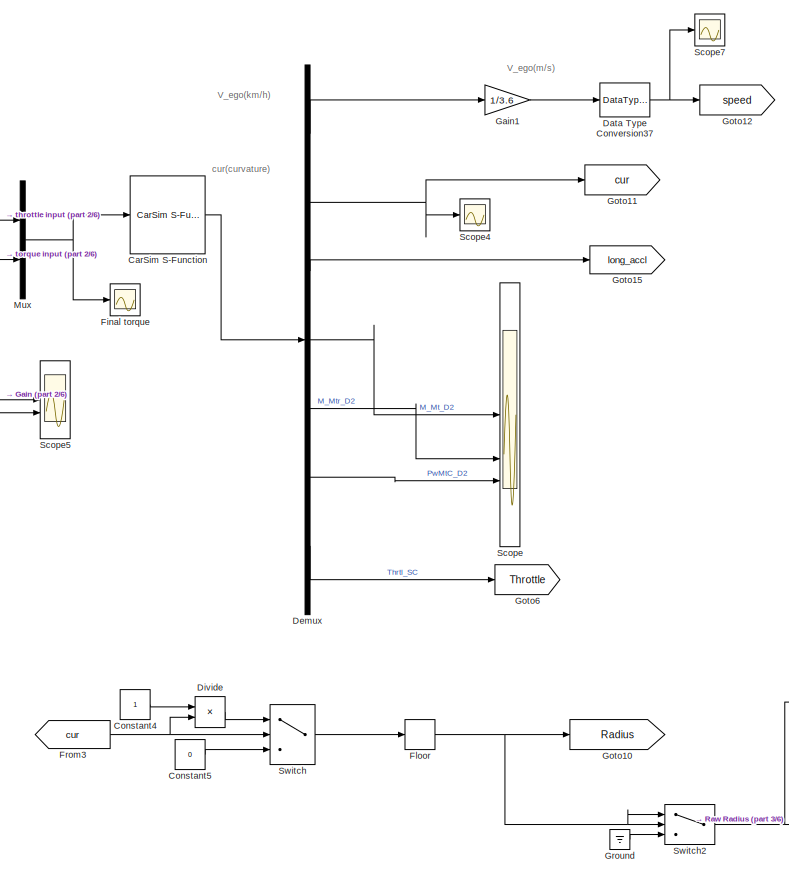
[diagram: root canvas - part 1/6, top center region]
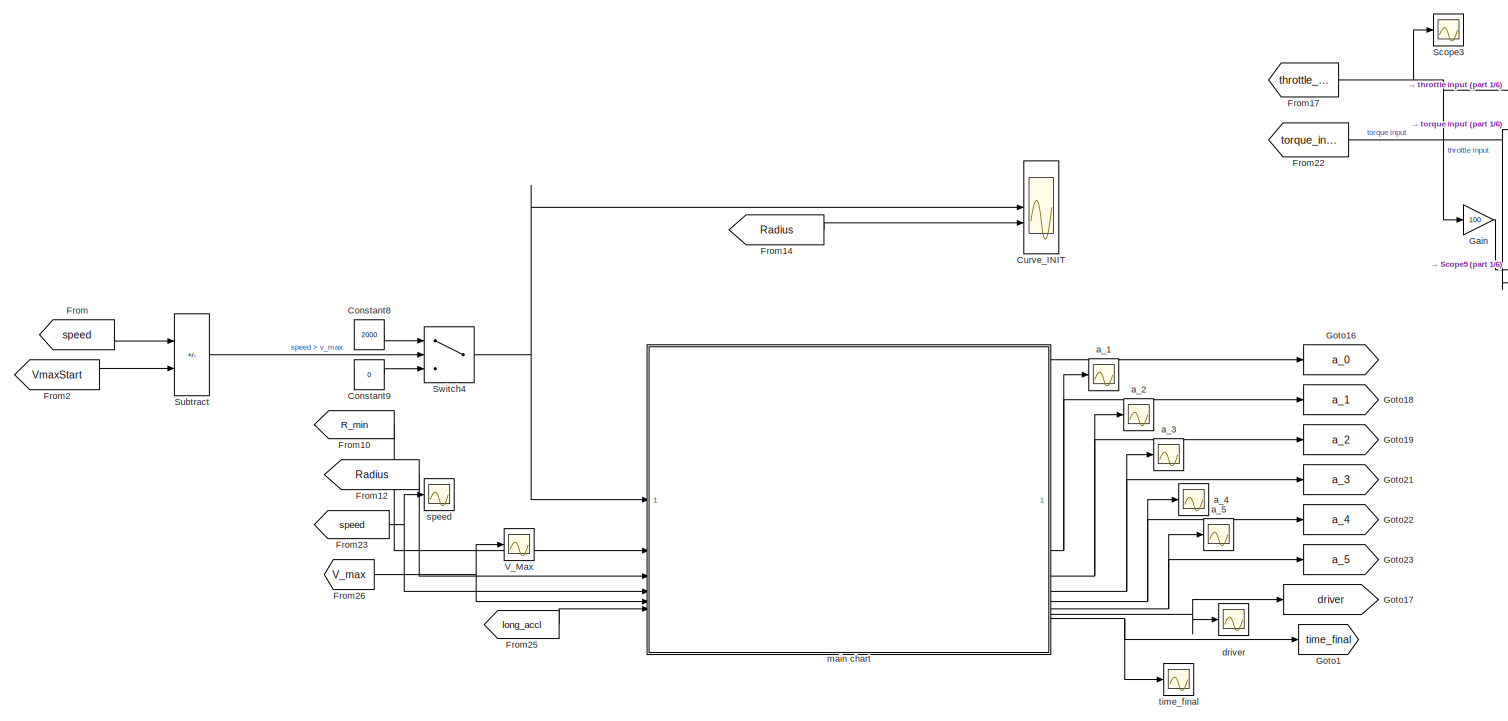
[diagram: root canvas - part 2/6, top left region]
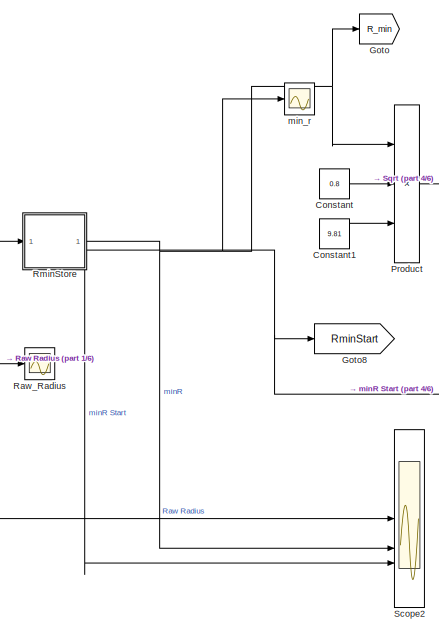
[diagram: root canvas - part 3/6, middle right region]
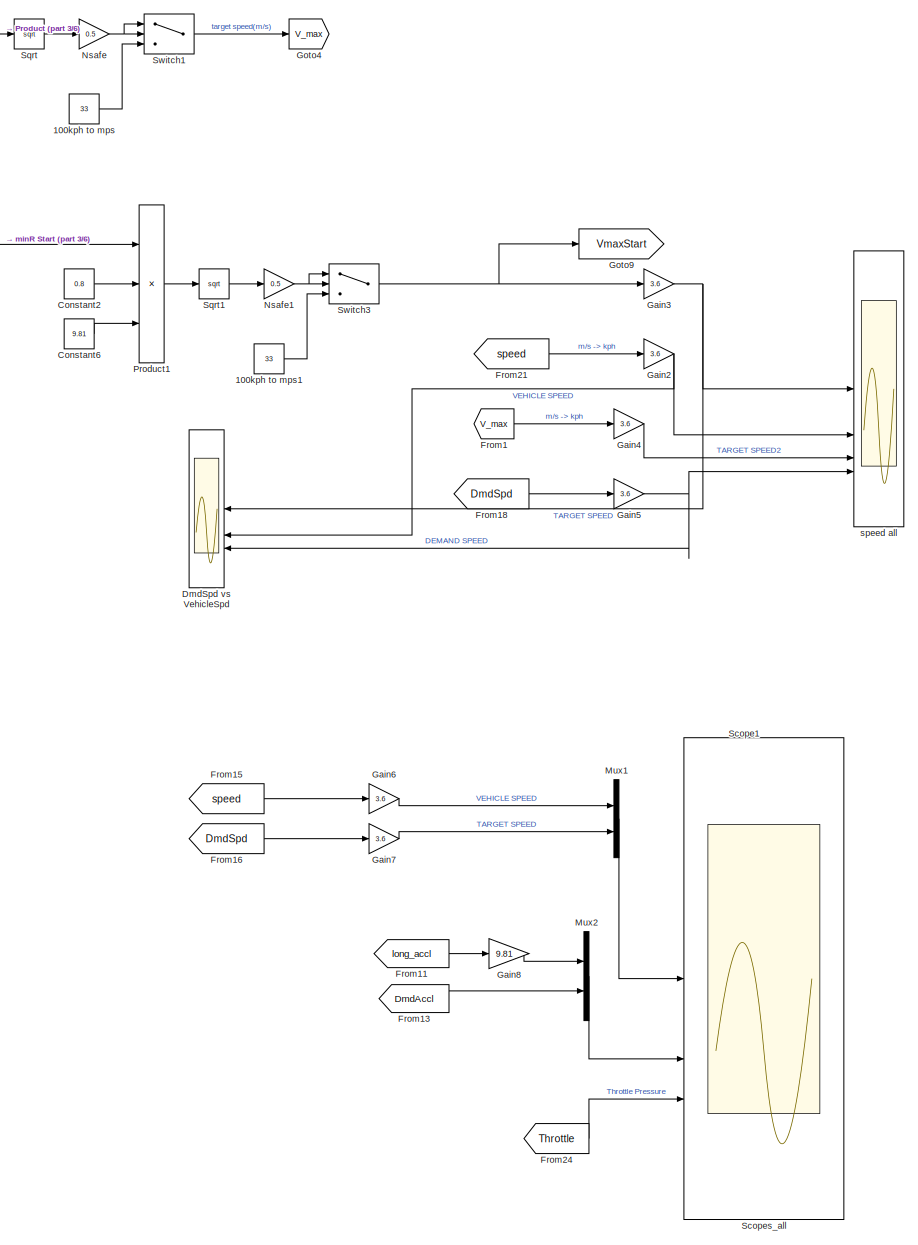
[diagram: root canvas - part 4/6, middle right region]
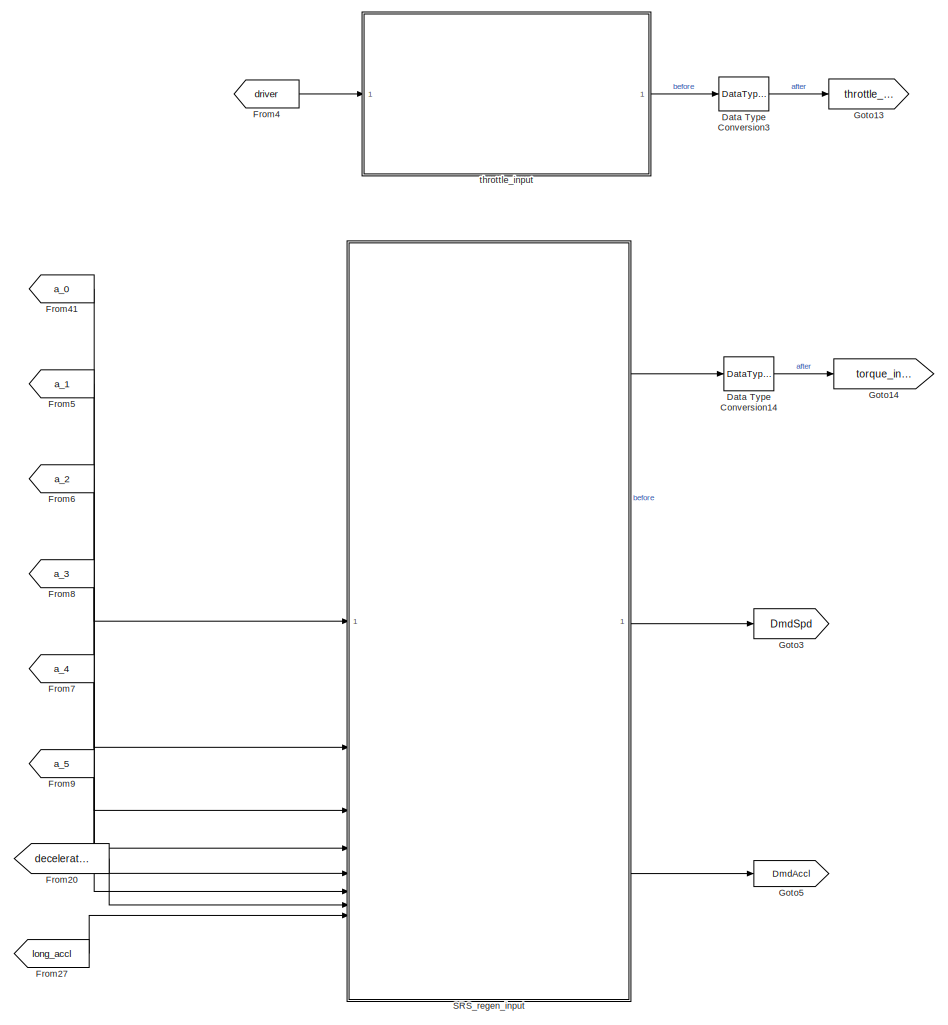
[diagram: root canvas - part 5/6, bottom left region]
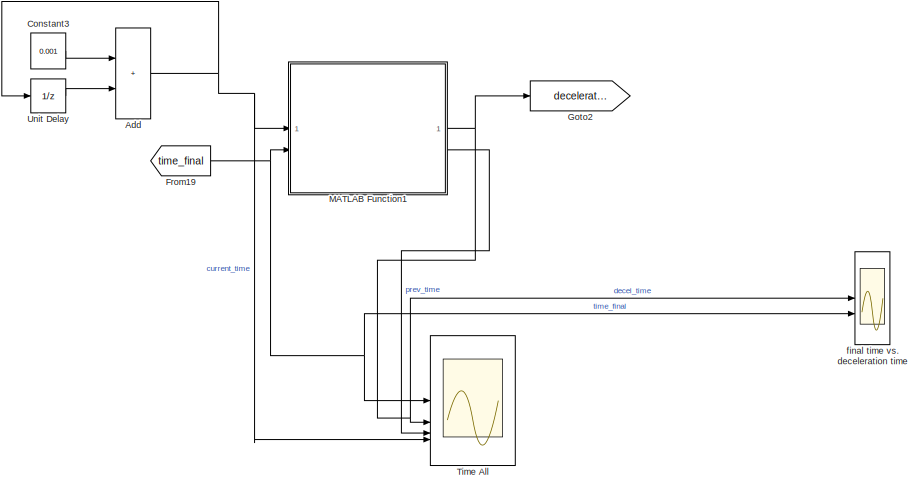
[diagram: root canvas - part 6/6, bottom center region]
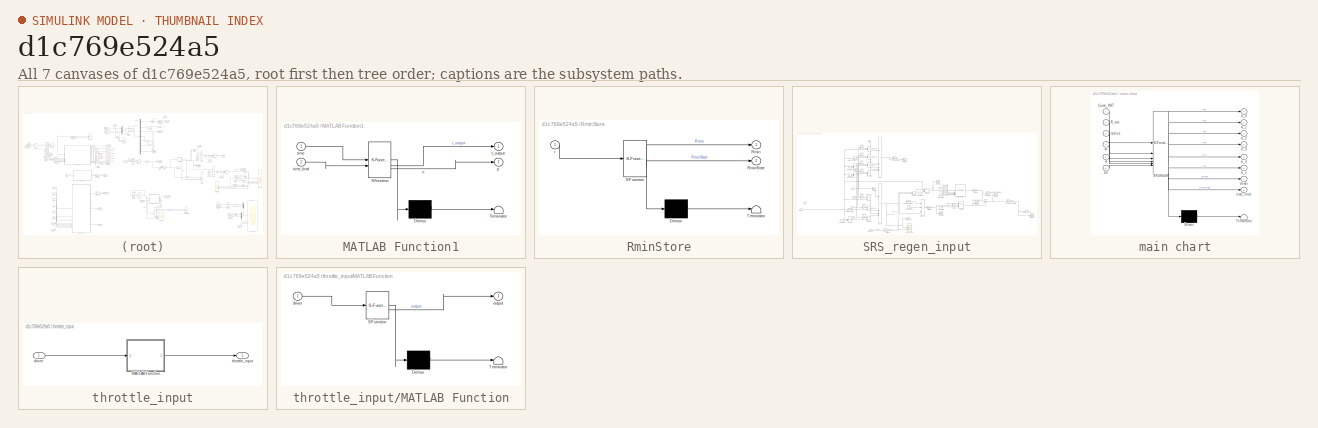
[diagram: thumbnail index - all 7 canvases of the model, root first then tree order]
MODEL slx_d1c769e524a5
KIND model
CONFIG AbsTol = auto
CONFIG EnableMultiTasking = off
CONFIG FixedStep = 0.001
CONFIG MaxStep = 0.001
CONFIG MinStep = auto
CONFIG RelTol = 1e-3
CONFIG SampleTimeConstraint = Unconstrained
CONFIG SolverName = FixedStepAuto
CONFIG StartTime = 0.0
CONFIG StopTime = 50
BLOCK [Constant] 100kph to mps
  Value = 33
BLOCK [Constant] 100kph to mps1
  Value = 33
BLOCK [Sum] Add
  IconShape = rectangular
BLOCK [Reference] CarSim S-Function  REF=Solver_SF/CarSim S-Function
  Priority = 1
  SourceBlock = Solver_SF/CarSim S-Function
  SourceProductName = CarSim S-Function
  SourceType = Vehicle math model library
BLOCK [Constant] Constant
  Value = 0.8
BLOCK [Constant] Constant1
  Value = 9.81
BLOCK [Constant] Constant2
  Value = 0.8
BLOCK [Constant] Constant3
  Value = 0.001
BLOCK [Constant] Constant4
BLOCK [Constant] Constant5
  Value = 0
BLOCK [Constant] Constant6
  Value = 9.81
BLOCK [Constant] Constant8
  Value = 2000
BLOCK [Constant] Constant9
  Value = 0
BLOCK [Scope] Curve_INIT
  Floating = off
  NumInputPorts = 2
  ScopeSpecificationString = Simulink.scopes.TimeScopeBlockCfg('CurrentConfiguration', extmgr.ConfigurationSet(extmgr.Configuration('Core','General UI',true),extmgr.Configuration('Core','Source UI',true),extmgr.Configuration('Sources','WiredSimulink',true,'DataLoggingVariableName','ScopeData1'),extmgr.Configuration('Visuals','Time Domain',true,'SerializedDisplays',{struct('MinYLimReal','-340.00000','MaxYLimReal','3060.00000',...<+1463ch>
BLOCK [DataTypeConversion] Data Type Conversion14
  OutDataTypeStr = fixdt(1,16,0)
  RndMeth = Nearest
  SaturateOnIntegerOverflow = off
BLOCK [DataTypeConversion] Data Type Conversion3
  OutDataTypeStr = fixdt(1,16,0)
  RndMeth = Nearest
  SaturateOnIntegerOverflow = off
BLOCK [DataTypeConversion] Data Type Conversion37
  OutDataTypeStr = fixdt(1,16,0.01,2^-6)
  RndMeth = Simplest
  SaturateOnIntegerOverflow = off
BLOCK [Demux] Demux
  Outputs = 7
BLOCK [Product] Divide
  Inputs = */
BLOCK [Scope] DmdSpd vs VehicleSpd
  Floating = off
  NumInputPorts = 3
  ScopeSpecificationString = Simulink.scopes.TimeScopeBlockCfg('CurrentConfiguration', extmgr.ConfigurationSet(extmgr.Configuration('Core','General UI',true),extmgr.Configuration('Core','Source UI',true),extmgr.Configuration('Sources','WiredSimulink',true,'DataLoggingVariableName','ScopeData1'),extmgr.Configuration('Visuals','Time Domain',true,'SerializedDisplays',{struct('MinYLimReal','-14.85265','MaxYLimReal','133.67382','Y...<+1462ch>
BLOCK [Scope] Final torque
  Floating = off
  NumInputPorts = 1
  ScopeSpecificationString = Simulink.scopes.TimeScopeBlockCfg('CurrentConfiguration', extmgr.ConfigurationSet(extmgr.Configuration('Core','General UI',true),extmgr.Configuration('Core','Source UI',true),extmgr.Configuration('Sources','WiredSimulink',true,'DataLoggingVariableName','ScopeData2'),extmgr.Configuration('Visuals','Time Domain',true,'SerializedDisplays',{struct('MinYLimReal','-165.6464','MaxYLimReal','80.74438','YL...<+1465ch>
BLOCK [Rounding] Floor
BLOCK [From] From
  GotoTag = speed
BLOCK [From] From1
  GotoTag = V_max
BLOCK [From] From10
  GotoTag = R_min
BLOCK [From] From11
  GotoTag = long_accl
BLOCK [From] From12
  GotoTag = Radius
BLOCK [From] From13
  GotoTag = DmdAccl
BLOCK [From] From14
  GotoTag = Radius
BLOCK [From] From15
  GotoTag = speed
BLOCK [From] From16
  GotoTag = DmdSpd
BLOCK [From] From17
  GotoTag = throttle_input
BLOCK [From] From18
  GotoTag = DmdSpd
BLOCK [From] From19
  GotoTag = time_final
BLOCK [From] From2
  GotoTag = VmaxStart
BLOCK [From] From20
  GotoTag = deceleration_time
BLOCK [From] From21
  GotoTag = speed
BLOCK [From] From22
  GotoTag = torque_input
BLOCK [From] From23
  GotoTag = speed
BLOCK [From] From24
  GotoTag = Throttle
BLOCK [From] From25
  GotoTag = long_accl
BLOCK [From] From26
  GotoTag = V_max
BLOCK [From] From27
  GotoTag = long_accl
BLOCK [From] From3
  GotoTag = cur
BLOCK [From] From4
  GotoTag = driver
BLOCK [From] From41
  GotoTag = a_0
BLOCK [From] From5
  GotoTag = a_1
BLOCK [From] From6
  GotoTag = a_2
BLOCK [From] From7
  GotoTag = a_4
BLOCK [From] From8
  GotoTag = a_3
BLOCK [From] From9
  GotoTag = a_5
BLOCK [Gain] Gain
  Gain = 100
BLOCK [Gain] Gain1
  Gain = 1/3.6
BLOCK [Gain] Gain2
  Gain = 3.6
BLOCK [Gain] Gain3
  Gain = 3.6
BLOCK [Gain] Gain4
  Gain = 3.6
BLOCK [Gain] Gain5
  Gain = 3.6
BLOCK [Gain] Gain6
  Gain = 3.6
BLOCK [Gain] Gain7
  Gain = 3.6
BLOCK [Gain] Gain8
  Gain = 9.81
BLOCK [Goto] Goto
  GotoTag = R_min
BLOCK [Goto] Goto1
  GotoTag = time_final
BLOCK [Goto] Goto10
  GotoTag = Radius
BLOCK [Goto] Goto11
  GotoTag = cur
BLOCK [Goto] Goto12
  GotoTag = speed
BLOCK [Goto] Goto13
  GotoTag = throttle_input
BLOCK [Goto] Goto14
  GotoTag = torque_input
BLOCK [Goto] Goto15
  GotoTag = long_accl
BLOCK [Goto] Goto16
  GotoTag = a_0
BLOCK [Goto] Goto17
  GotoTag = driver
BLOCK [Goto] Goto18
  GotoTag = a_1
BLOCK [Goto] Goto19
  GotoTag = a_2
BLOCK [Goto] Goto2
  GotoTag = deceleration_time
BLOCK [Goto] Goto21
  GotoTag = a_3
BLOCK [Goto] Goto22
  GotoTag = a_4
BLOCK [Goto] Goto23
  GotoTag = a_5
BLOCK [Goto] Goto3
  GotoTag = DmdSpd
BLOCK [Goto] Goto4
  GotoTag = V_max
BLOCK [Goto] Goto5
  GotoTag = DmdAccl
BLOCK [Goto] Goto6
  GotoTag = Throttle
BLOCK [Goto] Goto8
  GotoTag = RminStart
BLOCK [Goto] Goto9
  GotoTag = VmaxStart
BLOCK [Ground] Ground
BLOCK [SubSystem] MATLAB Function1
  ErrorFcn = Stateflow.Translate.translate
  PermitHierarchicalResolution = ExplicitOnly
  SFBlockType = MATLAB Function
  TreatAsAtomicUnit = on
BLOCK [Demux] MATLAB Function1/ Demux 
  Outputs = 1
BLOCK [S-Function] MATLAB Function1/ SFunction 
  EnableBusSupport = on
  FunctionName = sf_sfun
  PortCounts = [2 3]
  SFcnIsStateOwnerBlock = off
  SFunctionDeploymentMode = off
  Tag = Stateflow S-Function 3
BLOCK [Terminator] MATLAB Function1/ Terminator 
BLOCK [Outport] MATLAB Function1/p
  Port = 2
BLOCK [Outport] MATLAB Function1/t_output
BLOCK [Inport] MATLAB Function1/time
BLOCK [Inport] MATLAB Function1/time_final
  Port = 2
BLOCK [Mux] Mux
  DisplayOption = bar
  Inputs = 2
BLOCK [Mux] Mux1
  DisplayOption = bar
  Inputs = 2
BLOCK [Mux] Mux2
  DisplayOption = bar
  Inputs = 2
BLOCK [Gain] Nsafe
  Gain = 0.5
BLOCK [Gain] Nsafe1
  Gain = 0.5
BLOCK [Product] Product
  Inputs = 3
BLOCK [Product] Product1
  Inputs = 3
BLOCK [Scope] Raw_Radius
  Floating = off
  NumInputPorts = 1
  ScopeSpecificationString = Simulink.scopes.TimeScopeBlockCfg('CurrentConfiguration', extmgr.ConfigurationSet(extmgr.Configuration('Core','General UI',true),extmgr.Configuration('Core','Source UI',true),extmgr.Configuration('Sources','WiredSimulink',true,'DataLoggingVariableName','ScopeData2'),extmgr.Configuration('Visuals','Time Domain',true,'SerializedDisplays',{struct('MinYLimReal','-340.00000','MaxYLimReal','3060.00000',...<+1458ch>
BLOCK [SubSystem] RminStore
  ErrorFcn = Stateflow.Translate.translate
  PermitHierarchicalResolution = ExplicitOnly
  SFBlockType = Chart
  TreatAsAtomicUnit = on
BLOCK [Demux] RminStore/ Demux 
  Outputs = 1
BLOCK [S-Function] RminStore/ SFunction 
  EnableBusSupport = on
  FunctionName = sf_sfun
  PortCounts = [1 3]
  SFcnIsStateOwnerBlock = off
  SFunctionDeploymentMode = off
  Tag = Stateflow S-Function 5
BLOCK [Terminator] RminStore/ Terminator 
BLOCK [Outport] RminStore/Rmin
BLOCK [Outport] RminStore/RminStart
  Port = 2
BLOCK [Inport] RminStore/r
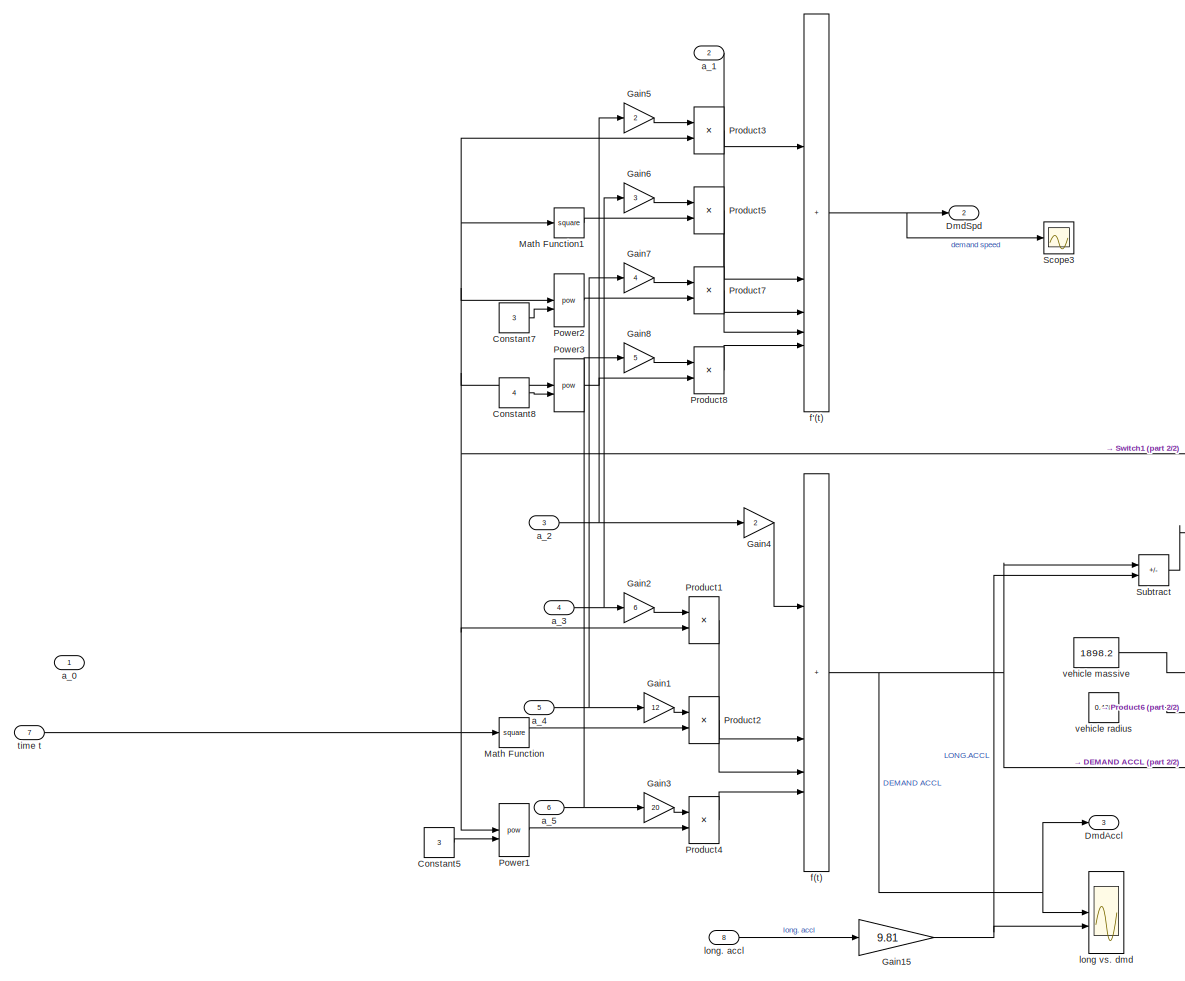
[diagram: SRS_regen_input - part 1/2, left side, full height]
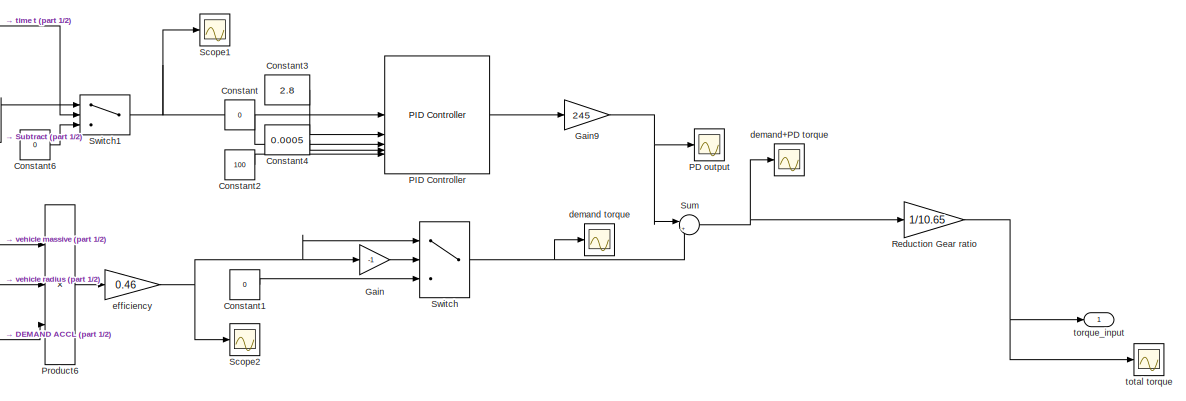
[diagram: SRS_regen_input - part 2/2, middle right region]
BLOCK [SubSystem] SRS_regen_input
  TreatAsAtomicUnit = on
BLOCK [Constant] SRS_regen_input/Constant
  Value = 0
BLOCK [Constant] SRS_regen_input/Constant1
  Value = 0
BLOCK [Constant] SRS_regen_input/Constant2
  Value = 100
BLOCK [Constant] SRS_regen_input/Constant3
  Value = 2.8
BLOCK [Constant] SRS_regen_input/Constant4
  Value = 0.0005
BLOCK [Constant] SRS_regen_input/Constant5
  Value = 3
BLOCK [Constant] SRS_regen_input/Constant6
  Value = 0
BLOCK [Constant] SRS_regen_input/Constant7
  Value = 3
BLOCK [Constant] SRS_regen_input/Constant8
  Value = 4
BLOCK [Outport] SRS_regen_input/DmdAccl
  Port = 3
BLOCK [Outport] SRS_regen_input/DmdSpd
  Port = 2
BLOCK [Gain] SRS_regen_input/Gain
  Gain = -1
BLOCK [Gain] SRS_regen_input/Gain1
  Gain = 12
BLOCK [Gain] SRS_regen_input/Gain15
  Gain = 9.81
BLOCK [Gain] SRS_regen_input/Gain2
  Gain = 6
BLOCK [Gain] SRS_regen_input/Gain3
  Gain = 20
BLOCK [Gain] SRS_regen_input/Gain4
  Gain = 2
BLOCK [Gain] SRS_regen_input/Gain5
  Gain = 2
BLOCK [Gain] SRS_regen_input/Gain6
  Gain = 3
BLOCK [Gain] SRS_regen_input/Gain7
  Gain = 4
BLOCK [Gain] SRS_regen_input/Gain8
  Gain = 5
BLOCK [Gain] SRS_regen_input/Gain9
  Gain = 245
BLOCK [Math] SRS_regen_input/Math Function
  Operator = square
BLOCK [Math] SRS_regen_input/Math Function1
  Operator = square
BLOCK [Scope] SRS_regen_input/PD output
  Floating = off
  NumInputPorts = 1
  ScopeSpecificationString = Simulink.scopes.TimeScopeBlockCfg('CurrentConfiguration', extmgr.ConfigurationSet(extmgr.Configuration('Core','General UI',true),extmgr.Configuration('Core','Source UI',true),extmgr.Configuration('Sources','WiredSimulink',true,'DataLoggingVariableName','ScopeData1'),extmgr.Configuration('Visuals','Time Domain',true,'SerializedDisplays',{struct('MinYLimReal','-1095.07692','MaxYLimReal','511.7642','...<+1457ch>
BLOCK [Reference] SRS_regen_input/PID Controller  REF=slpidlib/PID Controller
  LibrarySourceBlock = simulink/Continuous/PID Controller
  SourceBlock = slpidlib/PID Controller
  SourceType = PID 1dof
BLOCK [Math] SRS_regen_input/Power1
  Operator = pow
BLOCK [Math] SRS_regen_input/Power2
  Operator = pow
BLOCK [Math] SRS_regen_input/Power3
  Operator = pow
BLOCK [Product] SRS_regen_input/Product1
BLOCK [Product] SRS_regen_input/Product2
BLOCK [Product] SRS_regen_input/Product3
BLOCK [Product] SRS_regen_input/Product4
BLOCK [Product] SRS_regen_input/Product5
BLOCK [Product] SRS_regen_input/Product6
  Inputs = 3
BLOCK [Product] SRS_regen_input/Product7
BLOCK [Product] SRS_regen_input/Product8
BLOCK [Gain] SRS_regen_input/Reduction Gear ratio
  Gain = 1/10.65
BLOCK [Scope] SRS_regen_input/Scope1
  Floating = off
  NumInputPorts = 1
  ScopeSpecificationString = Simulink.scopes.TimeScopeBlockCfg('CurrentConfiguration', extmgr.ConfigurationSet(extmgr.Configuration('Core','General UI',true),extmgr.Configuration('Core','Source UI',true),extmgr.Configuration('Sources','WiredSimulink',true,'DataLoggingVariableName','ScopeData1'),extmgr.Configuration('Visuals','Time Domain',true,'SerializedDisplays',{struct('MinYLimReal','-1.18286','MaxYLimReal','0.42088','YLab...<+1422ch>
BLOCK [Scope] SRS_regen_input/Scope2
  Floating = off
  NumInputPorts = 1
  ScopeSpecificationString = Simulink.scopes.TimeScopeBlockCfg('CurrentConfiguration', extmgr.ConfigurationSet(extmgr.Configuration('Core','General UI',true),extmgr.Configuration('Core','Source UI',true),extmgr.Configuration('Sources','WiredSimulink',true,'DataLoggingVariableName','ScopeData1'),extmgr.Configuration('Visuals','Time Domain',true,'SerializedDisplays',{struct('MinYLimReal','-922.0159','MaxYLimReal','163.75974','Y...<+1454ch>
BLOCK [Scope] SRS_regen_input/Scope3
  Floating = off
  NumInputPorts = 1
  ScopeSpecificationString = Simulink.scopes.TimeScopeBlockCfg('CurrentConfiguration', extmgr.ConfigurationSet(extmgr.Configuration('Core','General UI',true),extmgr.Configuration('Core','Source UI',true),extmgr.Configuration('Sources','WiredSimulink',true,'DataLoggingVariableName','ScopeData1'),extmgr.Configuration('Visuals','Time Domain',true,'SerializedDisplays',{struct('MinYLimReal','-3.13608','MaxYLimReal','28.22474','YLa...<+1446ch>
BLOCK [Sum] SRS_regen_input/Subtract
  IconShape = rectangular
  Inputs = +-
BLOCK [Sum] SRS_regen_input/Sum
  Inputs = |++
BLOCK [Switch] SRS_regen_input/Switch
  Criteria = u2 > Threshold
  InputSameDT = off
  SaturateOnIntegerOverflow = off
BLOCK [Switch] SRS_regen_input/Switch1
  Criteria = u2 ~= 0
  InputSameDT = off
  SaturateOnIntegerOverflow = off
BLOCK [Inport] SRS_regen_input/a_0
BLOCK [Inport] SRS_regen_input/a_1
  Port = 2
BLOCK [Inport] SRS_regen_input/a_2
  Port = 3
BLOCK [Inport] SRS_regen_input/a_3
  Port = 4
BLOCK [Inport] SRS_regen_input/a_4
  Port = 5
BLOCK [Inport] SRS_regen_input/a_5
  Port = 6
BLOCK [Scope] SRS_regen_input/demand torque
  Floating = off
  NumInputPorts = 1
  ScopeSpecificationString = Simulink.scopes.TimeScopeBlockCfg('CurrentConfiguration', extmgr.ConfigurationSet(extmgr.Configuration('Core','General UI',true),extmgr.Configuration('Core','Source UI',true),extmgr.Configuration('Sources','WiredSimulink',true,'DataLoggingVariableName','ScopeData2'),extmgr.Configuration('Visuals','Time Domain',true,'SerializedDisplays',{struct('MinYLimReal','-477.7245','MaxYLimReal','53.0805','YLa...<+1471ch>
BLOCK [Scope] SRS_regen_input/demand+PD torque
  Floating = off
  NumInputPorts = 1
  ScopeSpecificationString = Simulink.scopes.TimeScopeBlockCfg('CurrentConfiguration', extmgr.ConfigurationSet(extmgr.Configuration('Core','General UI',true),extmgr.Configuration('Core','Source UI',true),extmgr.Configuration('Sources','WiredSimulink',true,'DataLoggingVariableName','ScopeData1'),extmgr.Configuration('Visuals','Time Domain',true,'SerializedDisplays',{struct('MinYLimReal','-651.14864','MaxYLimReal','137.09682','...<+1470ch>
BLOCK [Gain] SRS_regen_input/efficiency
  Gain = 0.46
BLOCK [Sum] SRS_regen_input/f'(t)
  IconShape = rectangular
  Inputs = 5
BLOCK [Sum] SRS_regen_input/f(t)
  IconShape = rectangular
  Inputs = 4
BLOCK [Scope] SRS_regen_input/long vs. dmd
  Floating = off
  NumInputPorts = 2
  ScopeSpecificationString = Simulink.scopes.TimeScopeBlockCfg('CurrentConfiguration', extmgr.ConfigurationSet(extmgr.Configuration('Core','General UI',true),extmgr.Configuration('Core','Source UI',true),extmgr.Configuration('Sources','WiredSimulink',true,'DataLoggingVariableName','ScopeData1'),extmgr.Configuration('Visuals','Time Domain',true,'SerializedDisplays',{struct('MinYLimReal','-4.12133','MaxYLimReal','4.22361','YLab...<+1499ch>
BLOCK [Inport] SRS_regen_input/long. accl
  Port = 8
BLOCK [Inport] SRS_regen_input/time t
  Port = 7
BLOCK [Outport] SRS_regen_input/torque_input
BLOCK [Scope] SRS_regen_input/total torque
  Floating = off
  NumInputPorts = 1
  ScopeSpecificationString = Simulink.scopes.TimeScopeBlockCfg('CurrentConfiguration', extmgr.ConfigurationSet(extmgr.Configuration('Core','General UI',true),extmgr.Configuration('Core','Source UI',true),extmgr.Configuration('Sources','WiredSimulink',true,'DataLoggingVariableName','ScopeData2'),extmgr.Configuration('Visuals','Time Domain',true,'SerializedDisplays',{struct('MinYLimReal','-20.08932','MaxYLimReal','3.34664','YLa...<+1571ch>
BLOCK [Constant] SRS_regen_input/vehicle massive
  Value = 1898.2
BLOCK [Constant] SRS_regen_input/vehicle radius
  Value = 0.468
BLOCK [Scope] Scope
  Floating = off
  NumInputPorts = 3
  ScopeSpecificationString = Simulink.scopes.TimeScopeBlockCfg('CurrentConfiguration', extmgr.ConfigurationSet(extmgr.Configuration('Core','General UI',true),extmgr.Configuration('Core','Source UI',true),extmgr.Configuration('Sources','WiredSimulink',true,'DataLoggingVariableName','ScopeData1'),extmgr.Configuration('Visuals','Time Domain',true,'SerializedDisplays',{struct('MinYLimReal','-65.97912','MaxYLimReal','396.22009','Y...<+1398ch>
BLOCK [Scope] Scope1
  Floating = off
  NumInputPorts = 1
  ScopeSpecificationString = Simulink.scopes.TimeScopeBlockCfg('CurrentConfiguration', extmgr.ConfigurationSet(extmgr.Configuration('Core','General UI',true),extmgr.Configuration('Core','Source UI',true),extmgr.Configuration('Sources','WiredSimulink',true,'DataLoggingVariableName','ScopeData2'),extmgr.Configuration('Visuals','Time Domain',true,'SerializedDisplays',{struct('MinYLimReal','-256.5','MaxYLimReal','2868.5','YLabelR...<+1358ch>
BLOCK [Scope] Scope2
  Floating = off
  NumInputPorts = 3
  ScopeSpecificationString = Simulink.scopes.TimeScopeBlockCfg('CurrentConfiguration', extmgr.ConfigurationSet(extmgr.Configuration('Core','General UI',true),extmgr.Configuration('Core','Source UI',true),extmgr.Configuration('Sources','WiredSimulink',true,'DataLoggingVariableName','ScopeData2'),extmgr.Configuration('Visuals','Time Domain',true,'SerializedDisplays',{struct('MinYLimReal','-258.18364','MaxYLimReal','151.02244','...<+1474ch>
BLOCK [Scope] Scope3
  Floating = off
  NumInputPorts = 1
  ScopeSpecificationString = Simulink.scopes.TimeScopeBlockCfg('CurrentConfiguration', extmgr.ConfigurationSet(extmgr.Configuration('Core','General UI',true),extmgr.Configuration('Core','Source UI',true),extmgr.Configuration('Sources','WiredSimulink',true,'DataLoggingVariableName','ScopeData1'),extmgr.Configuration('Visuals','Time Domain',true,'SerializedDisplays',{struct('MinYLimReal','-0.05','MaxYLimReal','0.45','YLabelReal...<+1426ch>
BLOCK [Scope] Scope4
  Floating = off
  NumInputPorts = 1
  ScopeSpecificationString = Simulink.scopes.TimeScopeBlockCfg('CurrentConfiguration', extmgr.ConfigurationSet(extmgr.Configuration('Core','General UI',true),extmgr.Configuration('Core','Source UI',true),extmgr.Configuration('Sources','WiredSimulink',true,'DataLoggingVariableName','ScopeData1'),extmgr.Configuration('Visuals','Time Domain',true,'SerializedDisplays',{struct('MinYLimReal','-0.00116','MaxYLimReal','0.01042','YLab...<+1366ch>
BLOCK [Scope] Scope5
  Floating = off
  NumInputPorts = 2
  ScopeSpecificationString = Simulink.scopes.TimeScopeBlockCfg('CurrentConfiguration', extmgr.ConfigurationSet(extmgr.Configuration('Core','General UI',true),extmgr.Configuration('Core','Source UI',true),extmgr.Configuration('Sources','WiredSimulink',true,'DataLoggingVariableName','ScopeData1'),extmgr.Configuration('Visuals','Time Domain',true,'SerializedDisplays',{struct('MinYLimReal','-27.2291','MaxYLimReal','47.4699','YLab...<+1434ch>
BLOCK [Scope] Scope7
  Floating = off
  NumInputPorts = 1
  ScopeSpecificationString = Simulink.scopes.TimeScopeBlockCfg('CurrentConfiguration', extmgr.ConfigurationSet(extmgr.Configuration('Core','General UI',true),extmgr.Configuration('Core','Source UI',true),extmgr.Configuration('Sources','WiredSimulink',true,'DataLoggingVariableName','ScopeData4'),extmgr.Configuration('Visuals','Time Domain',true,'SerializedDisplays',{struct('MinYLimReal','-2.67428','MaxYLimReal','24.06853','YLa...<+1385ch>
BLOCK [Scope] Scopes_all
  Floating = off
  NumInputPorts = 3
  ScopeSpecificationString = Simulink.scopes.TimeScopeBlockCfg('CurrentConfiguration', extmgr.ConfigurationSet(extmgr.Configuration('Core','General UI',true,'FigureColor',[1 1 1]),extmgr.Configuration('Core','Source UI',true),extmgr.Configuration('Sources','WiredSimulink',true,'DataLoggingSaveFormat','StructureWithTime','DataLoggingDecimation','1','DataLoggingDecimateData',true,'DataLoggingVariableName','ScopeData1'),extmgr.C...<+12221ch>
BLOCK [Sqrt] Sqrt
BLOCK [Sqrt] Sqrt1
BLOCK [Sum] Subtract
  IconShape = rectangular
  Inputs = +-
BLOCK [Switch] Switch
  Criteria = u2 ~= 0
  InputSameDT = off
  SaturateOnIntegerOverflow = off
BLOCK [Switch] Switch1
  Criteria = u2 > Threshold
  InputSameDT = off
  SaturateOnIntegerOverflow = off
BLOCK [Switch] Switch2
  Criteria = u2 ~= 0
  InputSameDT = off
  SaturateOnIntegerOverflow = off
BLOCK [Switch] Switch3
  Criteria = u2 > Threshold
  InputSameDT = off
  SaturateOnIntegerOverflow = off
BLOCK [Switch] Switch4
  Criteria = u2 > Threshold
  InputSameDT = off
  SaturateOnIntegerOverflow = off
BLOCK [Scope] Time All
  Floating = off
  NumInputPorts = 4
  ScopeSpecificationString = Simulink.scopes.TimeScopeBlockCfg('CurrentConfiguration', extmgr.ConfigurationSet(extmgr.Configuration('Core','General UI',true),extmgr.Configuration('Core','Source UI',true),extmgr.Configuration('Sources','WiredSimulink',true,'DataLoggingVariableName','ScopeData1'),extmgr.Configuration('Visuals','Time Domain',true,'SerializedDisplays',{struct('MinYLimReal','-16.2275','MaxYLimReal','146.0475','YLa...<+1484ch>
BLOCK [UnitDelay] Unit Delay
  HasFrameUpgradeWarning = on
  SampleTime = -1
BLOCK [Scope] V_Max
  Floating = off
  NumInputPorts = 1
  ScopeSpecificationString = Simulink.scopes.TimeScopeBlockCfg('CurrentConfiguration', extmgr.ConfigurationSet(extmgr.Configuration('Core','General UI',true),extmgr.Configuration('Core','Source UI',true),extmgr.Configuration('Sources','WiredSimulink',true,'DataLoggingVariableName','ScopeData6'),extmgr.Configuration('Visuals','Time Domain',true,'SerializedDisplays',{struct('MinYLimReal','8.31973','MaxYLimReal','29.94225','YLab...<+1451ch>
BLOCK [Scope] a_1
  Floating = off
  NameLocation = right
  NumInputPorts = 1
  ScopeSpecificationString = Simulink.scopes.TimeScopeBlockCfg('CurrentConfiguration', extmgr.ConfigurationSet(extmgr.Configuration('Core','General UI',true),extmgr.Configuration('Core','Source UI',true),extmgr.Configuration('Sources','WiredSimulink',true,'DataLoggingVariableName','ScopeData8'),extmgr.Configuration('Visuals','Time Domain',true,'SerializedDisplays',{struct('MinYLimReal','-2.8537','MaxYLimReal','25.68331','YLab...<+1447ch>
BLOCK [Scope] a_2
  Floating = off
  NameLocation = right
  NumInputPorts = 1
  ScopeSpecificationString = Simulink.scopes.TimeScopeBlockCfg('CurrentConfiguration', extmgr.ConfigurationSet(extmgr.Configuration('Core','General UI',true),extmgr.Configuration('Core','Source UI',true),extmgr.Configuration('Sources','WiredSimulink',true,'DataLoggingVariableName','ScopeData1'),extmgr.Configuration('Visuals','Time Domain',true,'SerializedDisplays',{struct('MinYLimReal','-0.000000000000000053','MaxYLimReal','0...<+1552ch>
BLOCK [Scope] a_3
  Floating = off
  NameLocation = right
  NumInputPorts = 1
  ScopeSpecificationString = Simulink.scopes.TimeScopeBlockCfg('CurrentConfiguration', extmgr.ConfigurationSet(extmgr.Configuration('Core','General UI',true),extmgr.Configuration('Core','Source UI',true),extmgr.Configuration('Sources','WiredSimulink',true,'DataLoggingVariableName','ScopeData2'),extmgr.Configuration('Visuals','Time Domain',true,'SerializedDisplays',{struct('MinYLimReal','-0.00155','MaxYLimReal','0.00036','YLab...<+1421ch>
BLOCK [Scope] a_4
  Floating = off
  NameLocation = right
  NumInputPorts = 1
  ScopeSpecificationString = Simulink.scopes.TimeScopeBlockCfg('CurrentConfiguration', extmgr.ConfigurationSet(extmgr.Configuration('Core','General UI',true),extmgr.Configuration('Core','Source UI',true),extmgr.Configuration('Sources','WiredSimulink',true,'DataLoggingVariableName','ScopeData3'),extmgr.Configuration('Visuals','Time Domain',true,'SerializedDisplays',{struct('MinYLimReal','-0.000011','MaxYLimReal','0.000009','YL...<+1432ch>
BLOCK [Scope] a_5
  Floating = off
  NameLocation = right
  NumInputPorts = 1
  ScopeSpecificationString = Simulink.scopes.TimeScopeBlockCfg('CurrentConfiguration', extmgr.ConfigurationSet(extmgr.Configuration('Core','General UI',true),extmgr.Configuration('Core','Source UI',true),extmgr.Configuration('Sources','WiredSimulink',true,'DataLoggingVariableName','ScopeData4'),extmgr.Configuration('Visuals','Time Domain',true,'SerializedDisplays',{struct('MinYLimReal','-0.000000000000000000024357','MaxYLimRe...<+1600ch>
BLOCK [Scope] driver
  Floating = off
  NumInputPorts = 1
  ScopeSpecificationString = Simulink.scopes.TimeScopeBlockCfg('CurrentConfiguration', extmgr.ConfigurationSet(extmgr.Configuration('Core','General UI',true),extmgr.Configuration('Core','Source UI',true),extmgr.Configuration('Sources','WiredSimulink',true,'DataLoggingVariableName','ScopeData4'),extmgr.Configuration('Visuals','Time Domain',true,'SerializedDisplays',{struct('MinYLimReal','-0.375','MaxYLimReal','3.375','YLabelRe...<+1387ch>
BLOCK [Scope] final time vs. deceleration time
  Floating = off
  NumInputPorts = 2
  ScopeSpecificationString = Simulink.scopes.TimeScopeBlockCfg('CurrentConfiguration', extmgr.ConfigurationSet(extmgr.Configuration('Core','General UI',true),extmgr.Configuration('Core','Source UI',true),extmgr.Configuration('Sources','WiredSimulink',true,'DataLoggingVariableName','ScopeData2'),extmgr.Configuration('Visuals','Time Domain',true,'SerializedDisplays',{struct('MinYLimReal','-0.54444','MaxYLimReal','4.89995','YLab...<+1411ch>
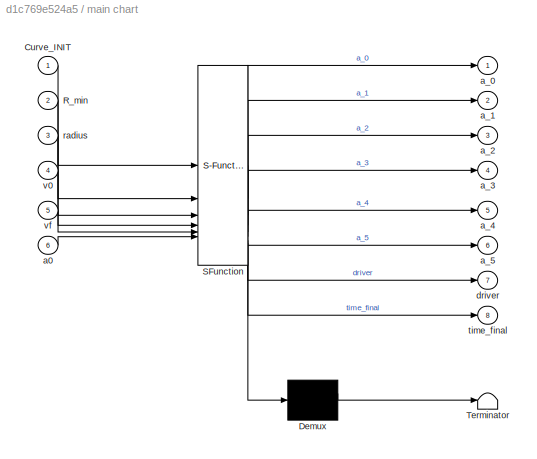
BLOCK [SubSystem] main chart
  ErrorFcn = Stateflow.Translate.translate
  PermitHierarchicalResolution = ExplicitOnly
  SFBlockType = Chart
  TreatAsAtomicUnit = on
BLOCK [Demux] main chart/ Demux 
  Outputs = 1
BLOCK [S-Function] main chart/ SFunction 
  EnableBusSupport = on
  FunctionName = sf_sfun
  PortCounts = [6 9]
  SFcnIsStateOwnerBlock = off
  SFunctionDeploymentMode = off
  Tag = Stateflow S-Function 1
BLOCK [Terminator] main chart/ Terminator 
BLOCK [Inport] main chart/Curve_INIT
BLOCK [Inport] main chart/R_min
  Port = 2
BLOCK [Inport] main chart/a0
  Port = 6
BLOCK [Outport] main chart/a_0
BLOCK [Outport] main chart/a_1
  Port = 2
BLOCK [Outport] main chart/a_2
  Port = 3
BLOCK [Outport] main chart/a_3
  Port = 4
BLOCK [Outport] main chart/a_4
  Port = 5
BLOCK [Outport] main chart/a_5
  Port = 6
BLOCK [Outport] main chart/driver
  Port = 7
BLOCK [Inport] main chart/radius
  Port = 3
BLOCK [Outport] main chart/time_final
  Port = 8
BLOCK [Inport] main chart/v0
  Port = 4
BLOCK [Inport] main chart/vf
  Port = 5
BLOCK [Scope] min_r
  Floating = off
  NumInputPorts = 1
  ScopeSpecificationString = Simulink.scopes.TimeScopeBlockCfg('CurrentConfiguration', extmgr.ConfigurationSet(extmgr.Configuration('Core','General UI',true),extmgr.Configuration('Core','Source UI',true),extmgr.Configuration('Sources','WiredSimulink',true,'DataLoggingVariableName','ScopeData3'),extmgr.Configuration('Visuals','Time Domain',true,'SerializedDisplays',{struct('MinYLimReal','-27.5','MaxYLimReal','247.5','YLabelRea...<+1427ch>
BLOCK [Scope] speed
  Floating = off
  NumInputPorts = 1
  ScopeSpecificationString = Simulink.scopes.TimeScopeBlockCfg('CurrentConfiguration', extmgr.ConfigurationSet(extmgr.Configuration('Core','General UI',true),extmgr.Configuration('Core','Source UI',true),extmgr.Configuration('Sources','WiredSimulink',true,'DataLoggingVariableName','ScopeData3'),extmgr.Configuration('Visuals','Time Domain',true),extmgr.Configuration('Tools','Plot Navigation',true),extmgr.Configuration('Tools',...<+40ch>
BLOCK [Scope] speed all
  Floating = off
  NumInputPorts = 4
  ScopeSpecificationString = Simulink.scopes.TimeScopeBlockCfg('CurrentConfiguration', extmgr.ConfigurationSet(extmgr.Configuration('Core','General UI',true),extmgr.Configuration('Core','Source UI',true),extmgr.Configuration('Sources','WiredSimulink',true,'DataLoggingVariableName','ScopeData1'),extmgr.Configuration('Visuals','Time Domain',true,'SerializedDisplays',{struct('MinYLimReal','-14.85328','MaxYLimReal','133.67951','Y...<+1567ch>
BLOCK [SubSystem] throttle_input
  SystemSampleTime = 0.01
  TreatAsAtomicUnit = on
BLOCK [SubSystem] throttle_input/MATLAB Function
  ErrorFcn = Stateflow.Translate.translate
  PermitHierarchicalResolution = ExplicitOnly
  SFBlockType = MATLAB Function
  TreatAsAtomicUnit = on
BLOCK [Demux] throttle_input/MATLAB Function/ Demux 
  Outputs = 1
BLOCK [S-Function] throttle_input/MATLAB Function/ SFunction 
  EnableBusSupport = on
  FunctionName = sf_sfun
  PortCounts = [1 2]
  SFcnIsStateOwnerBlock = off
  SFunctionDeploymentMode = off
  Tag = Stateflow S-Function 4
BLOCK [Terminator] throttle_input/MATLAB Function/ Terminator 
BLOCK [Inport] throttle_input/MATLAB Function/driver
BLOCK [Outport] throttle_input/MATLAB Function/output
BLOCK [Inport] throttle_input/driver
BLOCK [Outport] throttle_input/throttle_input
BLOCK [Scope] time_final
  Floating = off
  NumInputPorts = 1
  ScopeSpecificationString = Simulink.scopes.TimeScopeBlockCfg('CurrentConfiguration', extmgr.ConfigurationSet(extmgr.Configuration('Core','General UI',true),extmgr.Configuration('Core','Source UI',true),extmgr.Configuration('Sources','WiredSimulink',true,'DataLoggingVariableName','ScopeData7'),extmgr.Configuration('Visuals','Time Domain',true,'SerializedDisplays',{struct('MinYLimReal','-2.37334','MaxYLimReal','21.36002','YLa...<+1458ch>
ANNOTATION (root): V_ego(km/h)
ANNOTATION (root): V_ego(m/s)
ANNOTATION (root): cur(curvature)
LINE 100kph to mps1:1 -> Switch3:3
LINE 100kph to mps:1 -> Switch1:3
NET Add:1 -> MATLAB Function1:1, Time All:4, Unit Delay:1
LINE CarSim S-Function:1 -> Demux:1
LINE Constant1:1 -> Product:3
LINE Constant2:1 -> Product1:2
LINE Constant3:1 -> Add:1
LINE Constant4:1 -> Divide:1
LINE Constant5:1 -> Switch:3
LINE Constant6:1 -> Product1:3
LINE Constant8:1 -> Switch4:1
LINE Constant9:1 -> Switch4:3
LINE Constant:1 -> Product:2
LINE Data Type Conversion14:1 -> Goto14:1
NET Data Type Conversion37:1 -> Goto12:1, Scope7:1
LINE Data Type Conversion3:1 -> Goto13:1
LINE Demux:1 -> Gain1:1
NET Demux:2 -> Goto11:1, Scope4:1
LINE Demux:3 -> Goto15:1
LINE Demux:4 -> Scope:1
LINE Demux:5 -> Scope:2
LINE Demux:6 -> Scope:3
LINE Demux:7 -> Goto6:1
LINE Divide:1 -> Switch:1
NET Floor:1 -> Goto10:1, Switch2:1, Switch2:2
LINE From10:1 -> main chart:2
LINE From11:1 -> Gain8:1
LINE From12:1 -> main chart:3
LINE From13:1 -> Mux2:2
LINE From14:1 -> Curve_INIT:2
LINE From15:1 -> Gain6:1
LINE From16:1 -> Gain7:1
NET From17:1 -> Gain:1, Mux:1, Scope3:1
LINE From18:1 -> Gain5:1
NET From19:1 -> MATLAB Function1:2, Time All:1, final time vs. deceleration time:2
LINE From1:1 -> Gain4:1
LINE From20:1 -> SRS_regen_input:7
LINE From21:1 -> Gain2:1
NET From22:1 -> Mux:2, Scope5:2
NET From23:1 -> main chart:4, speed:1
LINE From24:1 -> Scopes_all:3
LINE From25:1 -> main chart:6
NET From26:1 -> V_Max:1, main chart:5
LINE From27:1 -> SRS_regen_input:8
LINE From2:1 -> Subtract:2
NET From3:1 -> Divide:2, Switch:2
LINE From41:1 -> SRS_regen_input:1
LINE From4:1 -> throttle_input:1
LINE From5:1 -> SRS_regen_input:2
LINE From6:1 -> SRS_regen_input:3
LINE From7:1 -> SRS_regen_input:5
LINE From8:1 -> SRS_regen_input:4
LINE From9:1 -> SRS_regen_input:6
LINE From:1 -> Subtract:1
LINE Gain1:1 -> Data Type Conversion37:1
NET Gain2:1 -> DmdSpd vs VehicleSpd:2, speed all:2
NET Gain3:1 -> DmdSpd vs VehicleSpd:1, speed all:1
LINE Gain4:1 -> speed all:3
NET Gain5:1 -> DmdSpd vs VehicleSpd:3, speed all:4
LINE Gain6:1 -> Mux1:1
LINE Gain7:1 -> Mux1:2
LINE Gain8:1 -> Mux2:1
LINE Gain:1 -> Scope5:1
LINE Ground:1 -> Switch2:3
NET MATLAB Function1:1 -> Goto2:1, Time All:2, final time vs. deceleration time:1
LINE MATLAB Function1:2 -> Time All:3
LINE Mux1:1 -> Scopes_all:1
LINE Mux2:1 -> Scopes_all:2
NET Mux:1 -> CarSim S-Function:1, Final torque:1
NET Nsafe1:1 -> Switch3:1, Switch3:2
NET Nsafe:1 -> Switch1:1, Switch1:2
LINE Product1:1 -> Sqrt1:1
LINE Product:1 -> Sqrt:1
NET RminStore:1 -> Goto:1, Product:1, Scope2:2, min_r:1
NET RminStore:2 -> Goto8:1, Product1:1, Scope2:3
LINE SRS_regen_input/Constant1:1 -> SRS_regen_input/Switch:3
LINE SRS_regen_input/Constant2:1 -> SRS_regen_input/PID Controller:5
LINE SRS_regen_input/Constant3:1 -> SRS_regen_input/PID Controller:2
LINE SRS_regen_input/Constant4:1 -> SRS_regen_input/PID Controller:4
LINE SRS_regen_input/Constant5:1 -> SRS_regen_input/Power1:2
LINE SRS_regen_input/Constant6:1 -> SRS_regen_input/Switch1:3
LINE SRS_regen_input/Constant7:1 -> SRS_regen_input/Power2:2
LINE SRS_regen_input/Constant8:1 -> SRS_regen_input/Power3:2
LINE SRS_regen_input/Constant:1 -> SRS_regen_input/PID Controller:3
NET SRS_regen_input/Gain15:1 -> SRS_regen_input/Subtract:2, SRS_regen_input/long vs. dmd:2
LINE SRS_regen_input/Gain1:1 -> SRS_regen_input/Product2:1
LINE SRS_regen_input/Gain2:1 -> SRS_regen_input/Product1:1
LINE SRS_regen_input/Gain3:1 -> SRS_regen_input/Product4:1
LINE SRS_regen_input/Gain4:1 -> SRS_regen_input/f(t):1
LINE SRS_regen_input/Gain5:1 -> SRS_regen_input/Product3:1
LINE SRS_regen_input/Gain6:1 -> SRS_regen_input/Product5:1
LINE SRS_regen_input/Gain7:1 -> SRS_regen_input/Product7:1
LINE SRS_regen_input/Gain8:1 -> SRS_regen_input/Product8:1
NET SRS_regen_input/Gain9:1 -> SRS_regen_input/PD output:1, SRS_regen_input/Sum:1
LINE SRS_regen_input/Gain:1 -> SRS_regen_input/Switch:2
LINE SRS_regen_input/Math Function1:1 -> SRS_regen_input/Product5:2
LINE SRS_regen_input/Math Function:1 -> SRS_regen_input/Product2:2
LINE SRS_regen_input/PID Controller:1 -> SRS_regen_input/Gain9:1
LINE SRS_regen_input/Power1:1 -> SRS_regen_input/Product4:2
LINE SRS_regen_input/Power2:1 -> SRS_regen_input/Product7:2
LINE SRS_regen_input/Power3:1 -> SRS_regen_input/Product8:2
LINE SRS_regen_input/Product1:1 -> SRS_regen_input/f(t):2
LINE SRS_regen_input/Product2:1 -> SRS_regen_input/f(t):3
LINE SRS_regen_input/Product3:1 -> SRS_regen_input/f'(t):2
LINE SRS_regen_input/Product4:1 -> SRS_regen_input/f(t):4
LINE SRS_regen_input/Product5:1 -> SRS_regen_input/f'(t):3
LINE SRS_regen_input/Product6:1 -> SRS_regen_input/efficiency:1
LINE SRS_regen_input/Product7:1 -> SRS_regen_input/f'(t):4
LINE SRS_regen_input/Product8:1 -> SRS_regen_input/f'(t):5
NET SRS_regen_input/Reduction Gear ratio:1 -> SRS_regen_input/torque_input:1, SRS_regen_input/total torque:1
LINE SRS_regen_input/Subtract:1 -> SRS_regen_input/Switch1:1
NET SRS_regen_input/Sum:1 -> SRS_regen_input/Reduction Gear ratio:1, SRS_regen_input/demand+PD torque:1
NET SRS_regen_input/Switch1:1 -> SRS_regen_input/PID Controller:1, SRS_regen_input/Scope1:1
NET SRS_regen_input/Switch:1 -> SRS_regen_input/Sum:2, SRS_regen_input/demand torque:1
LINE SRS_regen_input/a_1:1 -> SRS_regen_input/f'(t):1
NET SRS_regen_input/a_2:1 -> SRS_regen_input/Gain4:1, SRS_regen_input/Gain5:1
NET SRS_regen_input/a_3:1 -> SRS_regen_input/Gain2:1, SRS_regen_input/Gain6:1
NET SRS_regen_input/a_4:1 -> SRS_regen_input/Gain1:1, SRS_regen_input/Gain7:1
NET SRS_regen_input/a_5:1 -> SRS_regen_input/Gain3:1, SRS_regen_input/Gain8:1
NET SRS_regen_input/efficiency:1 -> SRS_regen_input/Gain:1, SRS_regen_input/Scope2:1, SRS_regen_input/Switch:1
NET SRS_regen_input/f'(t):1 -> SRS_regen_input/DmdSpd:1, SRS_regen_input/Scope3:1
NET SRS_regen_input/f(t):1 -> SRS_regen_input/DmdAccl:1, SRS_regen_input/Product6:3, SRS_regen_input/Subtract:1, SRS_regen_input/long vs. dmd:1
LINE SRS_regen_input/long. accl:1 -> SRS_regen_input/Gain15:1
NET SRS_regen_input/time t:1 -> SRS_regen_input/Math Function1:1, SRS_regen_input/Math Function:1, SRS_regen_input/Power1:1, SRS_regen_input/Power2:1, SRS_regen_input/Power3:1, SRS_regen_input/Product1:2, SRS_regen_input/Product3:2, SRS_regen_input/Switch1:2
LINE SRS_regen_input/vehicle massive:1 -> SRS_regen_input/Product6:1
LINE SRS_regen_input/vehicle radius:1 -> SRS_regen_input/Product6:2
LINE SRS_regen_input:1 -> Data Type Conversion14:1
LINE SRS_regen_input:2 -> Goto3:1
LINE SRS_regen_input:3 -> Goto5:1
LINE Sqrt1:1 -> Nsafe1:1
LINE Sqrt:1 -> Nsafe:1
LINE Subtract:1 -> Switch4:2
LINE Switch1:1 -> Goto4:1
NET Switch2:1 -> Raw_Radius:1, RminStore:1, Scope2:1
NET Switch3:1 -> Gain3:1, Goto9:1
NET Switch4:1 -> Curve_INIT:1, main chart:1
LINE Switch:1 -> Floor:1
LINE Unit Delay:1 -> Add:2
LINE main chart:1 -> Goto16:1
NET main chart:2 -> Goto18:1, a_1:1
NET main chart:3 -> Goto19:1, a_2:1
NET main chart:4 -> Goto21:1, a_3:1
NET main chart:5 -> Goto22:1, a_4:1
NET main chart:6 -> Goto23:1, a_5:1
NET main chart:7 -> Goto17:1, driver:1
NET main chart:8 -> Goto1:1, time_final:1
LINE throttle_input/MATLAB Function:1 -> throttle_input/throttle_input:1
LINE throttle_input/driver:1 -> throttle_input/MATLAB Function:1
LINE throttle_input:1 -> Data Type Conversion3:1
note: NET lines group one-source signal fan-out (src -> all destinations, sorted); 1:1 wires keep LINE
CHART MATLAB Function1 states=1 transitions=1
  STATE_LABEL 'eML_blk_kernel()'
  STATE_LABEL 'SCRIPT:\nfunction [t_output, p] = fcn(time, time_final)\n    persistent prev_time;  % 이전 시간 저장용 변수\n    if isempty(prev_time)\n        prev_time = time;  % 초기화, 첫 호출 시 현재 시간으로 설정\n    end\n\n    % time이 time_final에 도달하면 prev_time을 초기화\n    if (time - prev_time) < time_final \n        t_output = (time - prev_time);  % time_final에 도달하기 전까지의 값\n        p = prev_time;\n\n    \n    elseif (time - prev_time) == time...<+246ch>'
CHART throttle_input/MATLAB Function states=1 transitions=1
  STATE_LABEL 'eML_blk_kernel()'
  STATE_LABEL 'SCRIPT:\nfunction output = driver_function(driver)\n    switch driver\n        case 0\n            output = 0;\n        case 1\n            output = 0.4;\n        case 2\n            output = 0.04;\n        otherwise\n            output = 0.4;\n    end\nend\n'
CHART RminStore states=3 transitions=5
  STATE_LABEL 'RminStopStoring\n\nRmin = minimum;\nRminStart = 0;'
  STATE_LABEL 'RminStoring\nif r>2500 && r<3000\n    minimum = r-2500;\nend\nRmin = minimum;\nRminStart = minimum;'
  STATE_LABEL 'INITIAL\nminimum = 0;\nRmin=0;\nRminStart=0;'
CHART main chart states=7 transitions=11
  STATE_LABEL 'CurveRoadState\nduring:\ndriver = 0;\nif (radius-2500 == R_min )\n    if v0 ~= 0\n        if (flag_v == 0)\n            vv = v0;\n            flag_v = 1;\n        end\n    end\n    [distance, time_final] = var_cal(R_min, vv, vf);\n    if distance ~= 0\n        dd = distance;\n    end\n    if time_final ~= 0\n        tt = time_final;\n    end\n    if v0 ~= 0\n        if (flag_a == 0)\n            aa = a0;\n           ...<+138ch>'
  STATE_LABEL 'InitialState\ndriver = 0;\naa = 0;\nvv = 0;\ndd = 0;\ntt = 0;\nflag_v = 0;\nflag_a = 0;'
  STATE_LABEL '[distance, time_final] = var_cal(R_min, v0, vf)'
  STATE_LABEL 'SCRIPT:\nfunction [distance, time_final] = var_cal(R_min, v0, vf)\n    % radius: 입력 값\n    % v0: 초기 속도\n    % vf: 최종 속도\n    % distance: 조건에 따른 결과 값\n    % tf: 계산된 시간 (distance / ((v0 + vf) / 2))\n\n    %a_target = (a0 + 0) / 2;\n\n    % 조건에 따라 distance 설정\n    if R_min == 56\n        distance = 266.5;\n    elseif R_min == 108\n        distance = 84;\n    elseif R_min == 220\n        distance = 138.5;\n           ...<+377ch>'
  STATE_LABEL '[a_0, a_1, a_2, a_3, a_4, a_5] =  calculate(v0, a0, vf, distance, time_final)'
  STATE_LABEL 'SCRIPT:\nfunction [a_0, a_1, a_2, a_3, a_4, a_5] =  calculate(v0, a0, vf, distance, time_final)\n\n%% 5차 profiling %%\nxf = distance;\ntf = time_final;\naf = 0; %임의로 지정\n\nA = [1, 0, 0, 0, 0, 0;\n    0, 1, 0, 0, 0, 0;\n    0, 0, 2, 0, 0, 0;\n    1, tf, tf^2, tf^3, tf^4, tf^5;\n    0, 1, 2*tf, 3*tf^2, 4*tf^3, 5*tf^4;\n    0, 0, 2, 6*tf, 12*tf^2, 20*tf^3;];\n\nB = [0; v0; a0; xf; vf; af;];\n\n% 연립 방정식 풀기 (A \\ B 사용)\n...<+129ch>'
  STATE_LABEL 'KeepSpdState\ndriver = 2;\ndistance = 0;\ntime_final = 0;\na_0=0;\na_1=0;\na_2=0;\na_3=0;\na_4=0;\na_5=0;\nvv=0;\naa=0;\n'
  STATE_LABEL 'PowerAccelState\ndriver = 3;'
  STATE_LABEL 'NormAccelState\ndriver = 1;'
CHART  states=0 transitions=0
CHART  states=0 transitions=0
CHART  states=0 transitions=0
CHART  states=0 transitions=0
